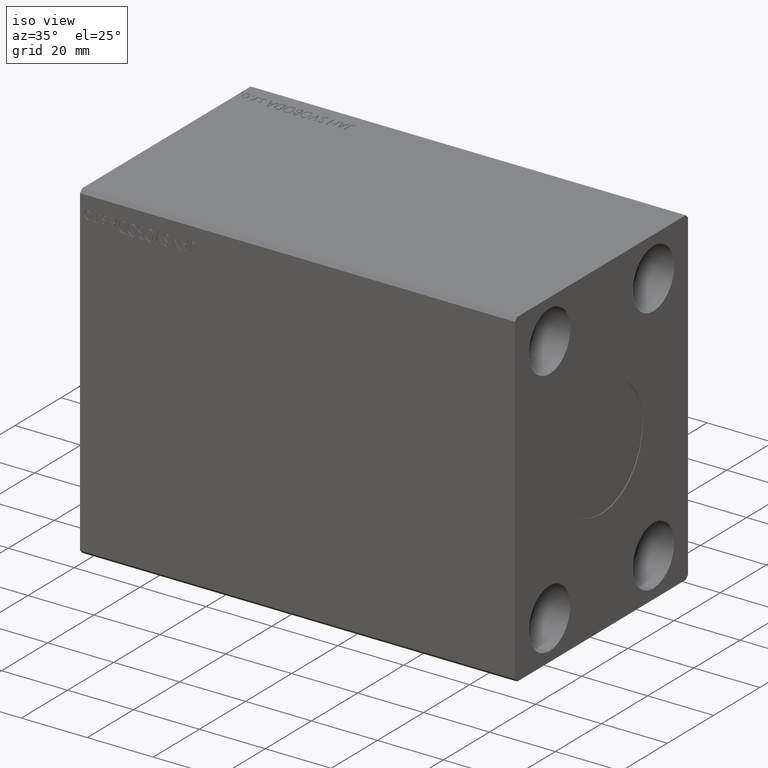
[diagram: clean part render]
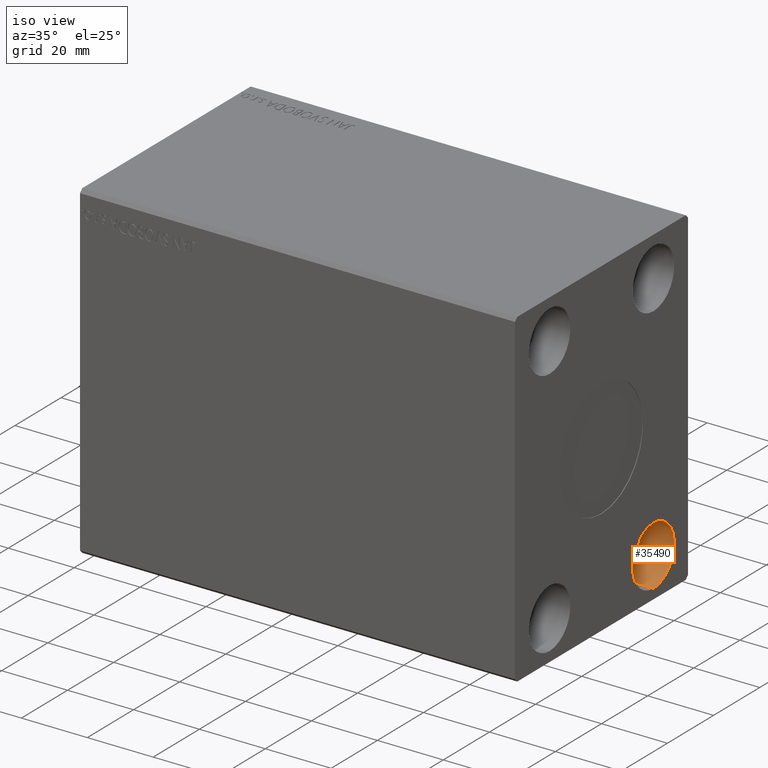
[diagram: same view with one face highlighted and labeled with its STEP entity id]
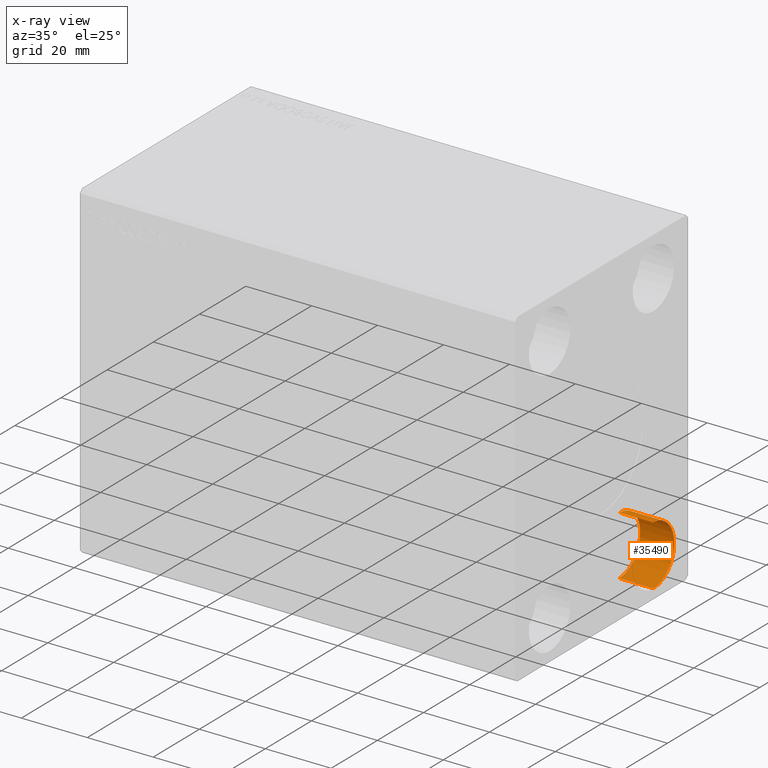
[diagram: x-ray of the same camera — body ghosted, the highlighted face saturated]
A machine part, iso view. The second image highlights one B-rep face of the part: STEP entity #35490.
The next image is the same camera in x-ray: the body ghosted, the highlighted face saturated — about 2% of this face is hidden behind the body in this view.
In plain terms, the highlighted cylindrical surface (edge-blend (fillet) strip) has radius 9 mm, axis along (1, -0, -0).
Its self-contained STEP definition (entity closure, byte-faithful):
#520 = DIRECTION ( 'NONE',  ( 1.000000000000000000, -0.000000000000000000, -0.000000000000000000 ) ) ;
#2416 = CARTESIAN_POINT ( 'NONE',  ( 121.6700000000000017, 22.50000000000000000, -38.00000000000000000 ) ) ;
#8412 = DIRECTION ( 'NONE',  ( -1.000000000000000000, -0.000000000000000000, -0.000000000000000000 ) ) ;
#9213 = LINE ( 'NONE', #31357, #38459 ) ;
#9241 = ORIENTED_EDGE ( 'NONE', *, *, #30162, .T. ) ;
#10965 = CARTESIAN_POINT ( 'NONE',  ( 132.0000000000000000, 22.50000000000000000, -38.00000000000000000 ) ) ;
#11657 = CARTESIAN_POINT ( 'NONE',  ( 121.6700000000000017, 22.50000000000000000, -28.99999999999999645 ) ) ;
#12389 = FACE_OUTER_BOUND ( 'NONE', #19885, .T. ) ;
#12690 = DIRECTION ( 'NONE',  ( 0.000000000000000000, 0.000000000000000000, 1.000000000000000000 ) ) ;
#12797 = CYLINDRICAL_SURFACE ( 'NONE', #14533, 9.000000000000001776 ) ;
#13544 = VERTEX_POINT ( 'NONE', #33525 ) ;
#14533 = AXIS2_PLACEMENT_3D ( 'NONE', #35166, #22685, #29555 ) ;
#15502 = DIRECTION ( 'NONE',  ( -1.000000000000000000, -0.000000000000000000, -0.000000000000000000 ) ) ;
#17027 = LINE ( 'NONE', #33371, #30065 ) ;
#19658 = ORIENTED_EDGE ( 'NONE', *, *, #32035, .F. ) ;
#19885 = EDGE_LOOP ( 'NONE', ( #23689, #9241, #27916, #19658 ) ) ;
#20586 = EDGE_CURVE ( 'NONE', #39571, #13544, #17027, .T. ) ;
#22448 = VERTEX_POINT ( 'NONE', #11657 ) ;
#22676 = AXIS2_PLACEMENT_3D ( 'NONE', #10965, #8412, #24306 ) ;
#22685 = DIRECTION ( 'NONE',  ( 1.000000000000000000, -0.000000000000000000, -0.000000000000000000 ) ) ;
#23302 = AXIS2_PLACEMENT_3D ( 'NONE', #2416, #15502, #12690 ) ;
#23689 = ORIENTED_EDGE ( 'NONE', *, *, #32438, .F. ) ;
#24306 = DIRECTION ( 'NONE',  ( 0.000000000000000000, 0.000000000000000000, 1.000000000000000000 ) ) ;
#24988 = CARTESIAN_POINT ( 'NONE',  ( 121.6700000000000017, 22.50000000000000000, -47.00000000000000000 ) ) ;
#25556 = VERTEX_POINT ( 'NONE', #26227 ) ;
#26227 = CARTESIAN_POINT ( 'NONE',  ( 132.0000000000000000, 22.50000000000000000, -28.99999999999999645 ) ) ;
#27916 = ORIENTED_EDGE ( 'NONE', *, *, #20586, .T. ) ;
#28856 = CIRCLE ( 'NONE', #22676, 9.000000000000001776 ) ;
#29555 = DIRECTION ( 'NONE',  ( 0.000000000000000000, 0.000000000000000000, -1.000000000000000000 ) ) ;
#30065 = VECTOR ( 'NONE', #520, 1000.000000000000000 ) ;
#30162 = EDGE_CURVE ( 'NONE', #22448, #39571, #41175, .T. ) ;
#31357 = CARTESIAN_POINT ( 'NONE',  ( 121.6700000000000017, 22.50000000000000000, -28.99999999999999645 ) ) ;
#31995 = DIRECTION ( 'NONE',  ( 1.000000000000000000, -0.000000000000000000, -0.000000000000000000 ) ) ;
#32035 = EDGE_CURVE ( 'NONE', #25556, #13544, #28856, .T. ) ;
#32438 = EDGE_CURVE ( 'NONE', #22448, #25556, #9213, .T. ) ;
#33371 = CARTESIAN_POINT ( 'NONE',  ( 121.6700000000000017, 22.50000000000000000, -47.00000000000000000 ) ) ;
#33525 = CARTESIAN_POINT ( 'NONE',  ( 132.0000000000000000, 22.50000000000000000, -47.00000000000000000 ) ) ;
#35166 = CARTESIAN_POINT ( 'NONE',  ( 121.6700000000000017, 22.50000000000000000, -38.00000000000000000 ) ) ;
#35490 = ADVANCED_FACE ( 'NONE', ( #12389 ), #12797, .F. ) ;
#38459 = VECTOR ( 'NONE', #31995, 1000.000000000000000 ) ;
#39571 = VERTEX_POINT ( 'NONE', #24988 ) ;
#41175 = CIRCLE ( 'NONE', #23302, 9.000000000000001776 ) ;